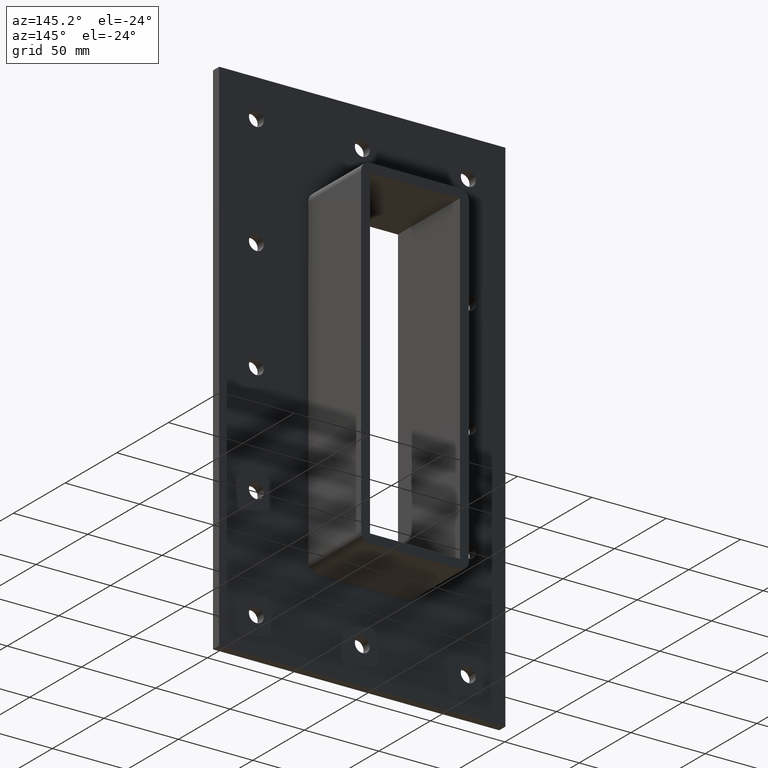
[diagram: clean part render]
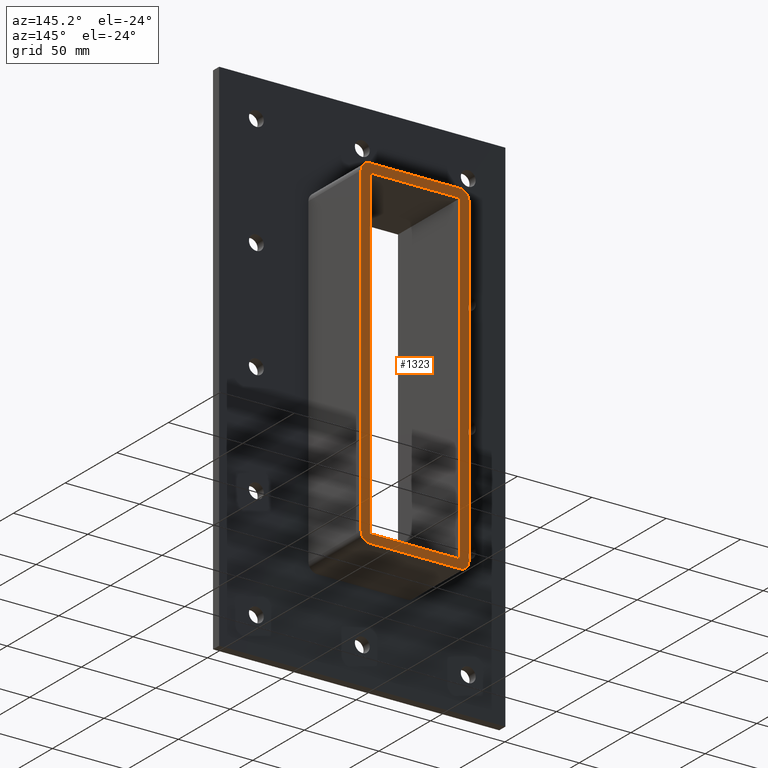
[diagram: same view with one face highlighted and labeled with its STEP entity id]
A machine part, auxiliary view. The second image highlights one B-rep face of the part: STEP entity #1323.
In plain terms, the highlighted planar face has unit normal (0, 1, 0).
Its self-contained STEP definition (entity closure, byte-faithful):
#771=CARTESIAN_POINT('',(-30.250000000000004,57.0,-109.0));
#772=VERTEX_POINT('',#771);
#779=CARTESIAN_POINT('',(-30.250000000000004,57.0,109.0));
#780=VERTEX_POINT('',#779);
#781=CARTESIAN_POINT('',(-30.250000000000004,57.0,109.0));
#782=DIRECTION('',(0.0,0.0,-1.0));
#783=VECTOR('',#782,218.0);
#784=LINE('',#781,#783);
#785=EDGE_CURVE('',#780,#772,#784,.T.);
#842=CARTESIAN_POINT('',(36.250000000000007,57.0,109.0));
#843=VERTEX_POINT('',#842);
#850=CARTESIAN_POINT('',(30.25,57.0,115.0));
#851=VERTEX_POINT('',#850);
#852=CARTESIAN_POINT('',(30.250000000000004,57.0,109.0));
#853=DIRECTION('',(0.0,-1.0,0.0));
#854=DIRECTION('',(0.707106781186548,0.0,0.707106781186547));
#855=AXIS2_PLACEMENT_3D('',#852,#853,#854);
#856=CIRCLE('',#855,6.0);
#857=EDGE_CURVE('',#843,#851,#856,.T.);
#898=CARTESIAN_POINT('',(36.250000000000007,57.0,-108.99999999999999));
#899=VERTEX_POINT('',#898);
#906=CARTESIAN_POINT('',(36.250000000000007,57.0,109.0));
#907=DIRECTION('',(0.0,0.0,-1.0));
#908=VECTOR('',#907,218.0);
#909=LINE('',#906,#908);
#910=EDGE_CURVE('',#843,#899,#909,.T.);
#971=CARTESIAN_POINT('',(30.250000000000004,57.0,-115.0));
#972=VERTEX_POINT('',#971);
#979=CARTESIAN_POINT('',(30.250000000000004,57.0,-108.99999999999999));
#980=DIRECTION('',(0.0,-1.0,0.0));
#981=DIRECTION('',(0.707106781186546,0.0,-0.707106781186549));
#982=AXIS2_PLACEMENT_3D('',#979,#980,#981);
#983=CIRCLE('',#982,6.000000000000001);
#984=EDGE_CURVE('',#972,#899,#983,.T.);
#1045=CARTESIAN_POINT('',(-30.25,57.0,-115.0));
#1046=VERTEX_POINT('',#1045);
#1053=CARTESIAN_POINT('',(30.250000000000007,57.0,-115.0));
#1054=DIRECTION('',(-1.0,0.0,0.0));
#1055=VECTOR('',#1054,60.5);
#1056=LINE('',#1053,#1055);
#1057=EDGE_CURVE('',#972,#1046,#1056,.T.);
#1152=CARTESIAN_POINT('',(-36.250000000000007,57.0,-108.99999999999999));
#1153=VERTEX_POINT('',#1152);
#1160=CARTESIAN_POINT('',(-30.250000000000004,57.0,-108.99999999999999));
#1161=DIRECTION('',(0.0,-1.0,0.0));
#1162=DIRECTION('',(-0.707106781186546,0.0,-0.707106781186549));
#1163=AXIS2_PLACEMENT_3D('',#1160,#1161,#1162);
#1164=CIRCLE('',#1163,6.000000000000001);
#1165=EDGE_CURVE('',#1153,#1046,#1164,.T.);
#1177=CARTESIAN_POINT('',(-36.250000000000007,57.0,108.99999999999999));
#1178=VERTEX_POINT('',#1177);
#1185=CARTESIAN_POINT('',(-36.250000000000007,57.0,-108.99999999999999));
#1186=DIRECTION('',(0.0,0.0,1.0));
#1187=VECTOR('',#1186,218.0);
#1188=LINE('',#1185,#1187);
#1189=EDGE_CURVE('',#1153,#1178,#1188,.T.);
#1201=CARTESIAN_POINT('',(-30.250000000000004,57.0,115.0));
#1202=VERTEX_POINT('',#1201);
#1209=CARTESIAN_POINT('',(-30.250000000000004,57.0,108.99999999999999));
#1210=DIRECTION('',(0.0,-1.0,0.0));
#1211=DIRECTION('',(-0.707106781186546,0.0,0.707106781186549));
#1212=AXIS2_PLACEMENT_3D('',#1209,#1210,#1211);
#1213=CIRCLE('',#1212,6.000000000000001);
#1214=EDGE_CURVE('',#1202,#1178,#1213,.T.);
#1227=CARTESIAN_POINT('',(-30.250000000000007,57.0,115.0));
#1228=DIRECTION('',(1.0,0.0,0.0));
#1229=VECTOR('',#1228,60.5);
#1230=LINE('',#1227,#1229);
#1231=EDGE_CURVE('',#1202,#851,#1230,.T.);
#1242=CARTESIAN_POINT('',(30.250000000000004,57.0,-109.0));
#1243=VERTEX_POINT('',#1242);
#1251=CARTESIAN_POINT('',(30.250000000000004,57.0,109.0));
#1252=VERTEX_POINT('',#1251);
#1259=CARTESIAN_POINT('',(30.250000000000004,57.0,-109.0));
#1260=DIRECTION('',(0.0,0.0,1.0));
#1261=VECTOR('',#1260,218.0);
#1262=LINE('',#1259,#1261);
#1263=EDGE_CURVE('',#1243,#1252,#1262,.T.);
#1274=CARTESIAN_POINT('',(30.250000000000007,57.0,109.0));
#1275=DIRECTION('',(-1.0,0.0,0.0));
#1276=VECTOR('',#1275,60.500000000000014);
#1277=LINE('',#1274,#1276);
#1278=EDGE_CURVE('',#1252,#780,#1277,.T.);
#1293=CARTESIAN_POINT('',(-30.250000000000007,57.0,-109.0));
#1294=DIRECTION('',(1.0,0.0,0.0));
#1295=VECTOR('',#1294,60.500000000000014);
#1296=LINE('',#1293,#1295);
#1297=EDGE_CURVE('',#772,#1243,#1296,.T.);
#1302=CARTESIAN_POINT('',(0.0,57.0,0.0));
#1303=DIRECTION('',(0.0,1.0,0.0));
#1304=DIRECTION('',(0.0,0.0,1.0));
#1305=AXIS2_PLACEMENT_3D('',#1302,#1303,#1304);
#1306=PLANE('',#1305);
#1307=ORIENTED_EDGE('',*,*,#984,.F.);
#1308=ORIENTED_EDGE('',*,*,#1057,.T.);
#1309=ORIENTED_EDGE('',*,*,#1165,.F.);
#1310=ORIENTED_EDGE('',*,*,#1189,.T.);
#1311=ORIENTED_EDGE('',*,*,#1214,.F.);
#1312=ORIENTED_EDGE('',*,*,#1231,.T.);
#1313=ORIENTED_EDGE('',*,*,#857,.F.);
#1314=ORIENTED_EDGE('',*,*,#910,.T.);
#1315=EDGE_LOOP('',(#1307,#1308,#1309,#1310,#1311,#1312,#1313,#1314));
#1316=FACE_OUTER_BOUND('',#1315,.T.);
#1317=ORIENTED_EDGE('',*,*,#1263,.T.);
#1318=ORIENTED_EDGE('',*,*,#1278,.T.);
#1319=ORIENTED_EDGE('',*,*,#785,.T.);
#1320=ORIENTED_EDGE('',*,*,#1297,.T.);
#1321=EDGE_LOOP('',(#1317,#1318,#1319,#1320));
#1322=FACE_BOUND('',#1321,.T.);
#1323=ADVANCED_FACE('',(#1316,#1322),#1306,.T.);